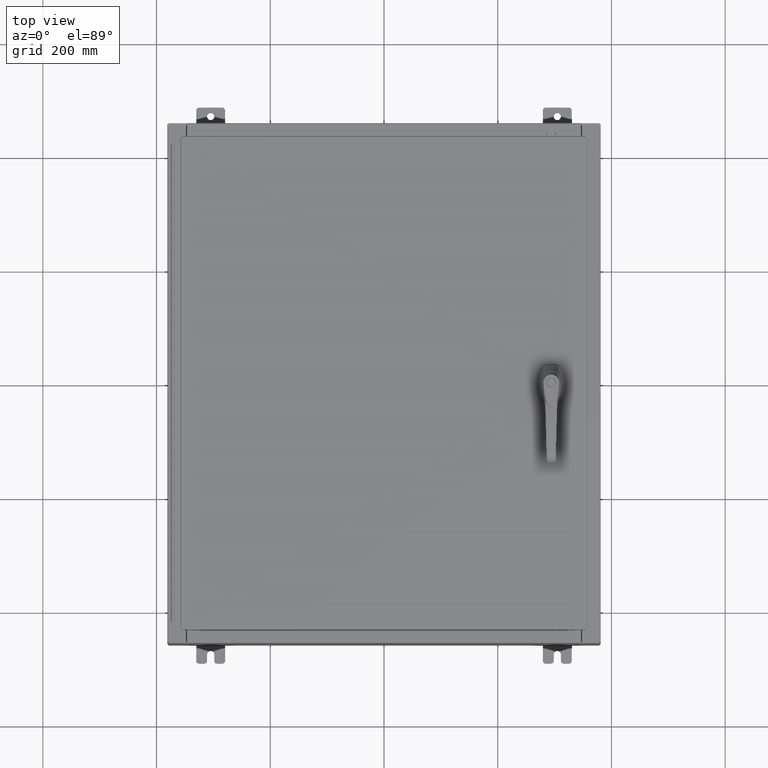
[diagram: clean part render]
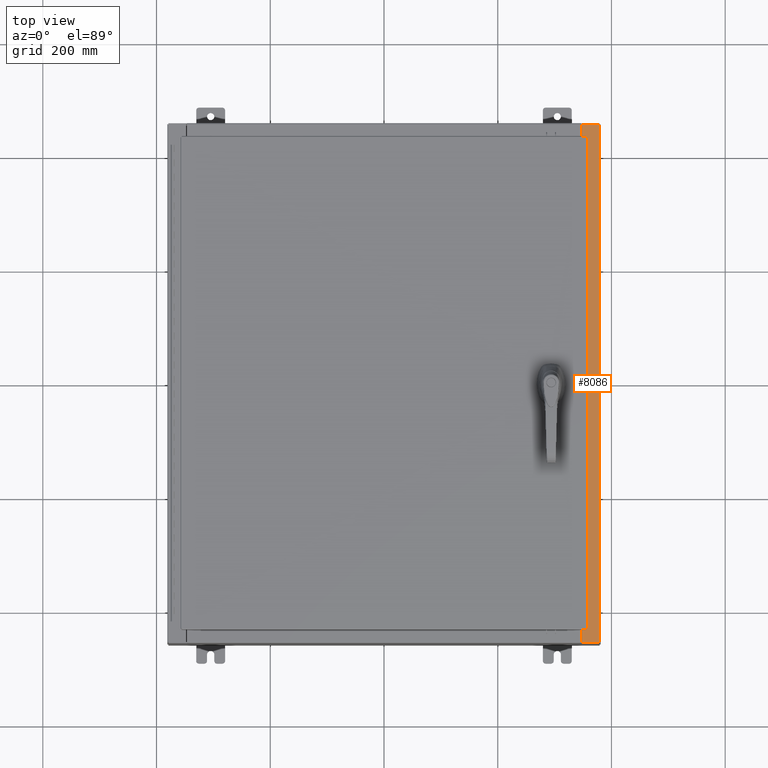
[diagram: same view with one face highlighted and labeled with its STEP entity id]
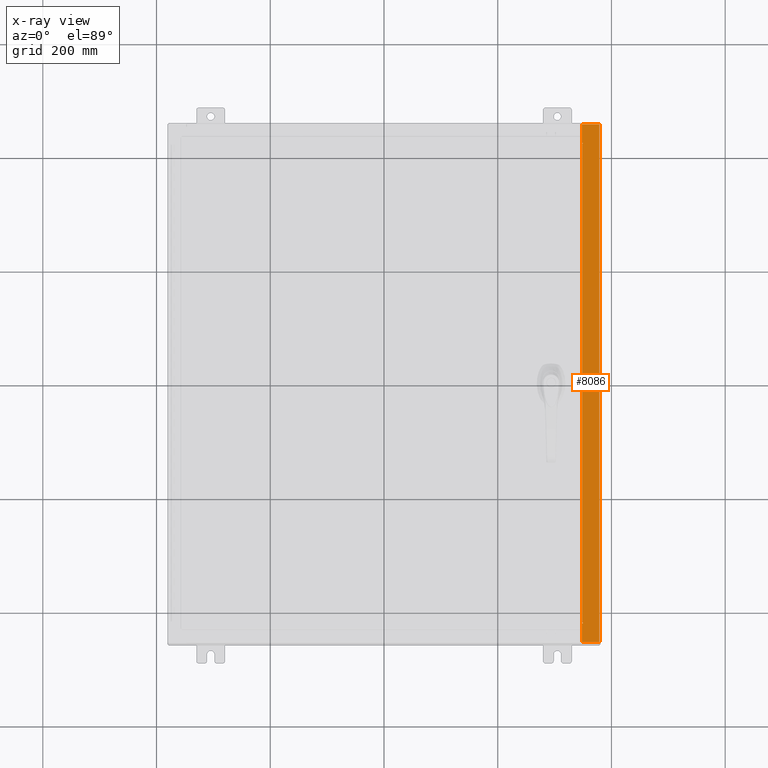
[diagram: x-ray of the same camera — body ghosted, the highlighted face saturated]
A machine part, top view. The second image highlights one B-rep face of the part: STEP entity #8086.
The next image is the same camera in x-ray: the body ghosted, the highlighted face saturated — about 0% of this face is hidden behind the body in this view.
In plain terms, the highlighted planar face has unit normal (-0, 0, -1).
Its self-contained STEP definition (entity closure, byte-faithful):
#383 = LINE ( 'NONE', #83396, #99396 ) ;
#844 = VERTEX_POINT ( 'NONE', #11140 ) ;
#948 = LINE ( 'NONE', #99024, #71420 ) ;
#1593 = LINE ( 'NONE', #89528, #69041 ) ;
#2218 = LINE ( 'NONE', #29601, #47146 ) ;
#8086 = ADVANCED_FACE ( 'NONE', ( #34004 ), #79141, .F. ) ;
#9001 = VERTEX_POINT ( 'NONE', #14381 ) ;
#10304 = DIRECTION ( 'NONE',  ( -1.000000000000000000, 0.0000000000000000000, 0.0000000000000000000 ) ) ;
#11140 = CARTESIAN_POINT ( 'NONE',  ( 13.71270000000003700, -16.59375000000000000, 9.925300000000008900 ) ) ;
#13888 = EDGE_CURVE ( 'NONE', #70707, #87304, #2218, .T. ) ;
#14381 = CARTESIAN_POINT ( 'NONE',  ( 13.75005000000003500, -16.59375000000000000, 9.925300000000008900 ) ) ;
#14393 = EDGE_CURVE ( 'NONE', #99327, #9001, #99621, .T. ) ;
#14497 = CARTESIAN_POINT ( 'NONE',  ( 13.75005000000003500, 16.61242500000000200, 9.925300000000008900 ) ) ;
#16225 = EDGE_CURVE ( 'NONE', #116190, #99327, #383, .T. ) ;
#16793 = EDGE_CURVE ( 'NONE', #96787, #108605, #81461, .T. ) ;
#17408 = CARTESIAN_POINT ( 'NONE',  ( 13.69970000000003400, -16.63110000000000000, 9.925300000000008900 ) ) ;
#18208 = ORIENTED_EDGE ( 'NONE', *, *, #58422, .T. ) ;
#18232 = VECTOR ( 'NONE', #24256, 39.37007874015748100 ) ;
#18761 = ORIENTED_EDGE ( 'NONE', *, *, #113169, .T. ) ;
#24122 = DIRECTION ( 'NONE',  ( 1.000000000000000000, 0.0000000000000000000, 0.0000000000000000000 ) ) ;
#24214 = CARTESIAN_POINT ( 'NONE',  ( 13.75005000000003500, -16.59375000000000000, 9.925300000000008900 ) ) ;
#24256 = DIRECTION ( 'NONE',  ( -4.276128853718621600E-031, -1.000000000000000000, 2.287545828266532300E-045 ) ) ;
#28837 = AXIS2_PLACEMENT_3D ( 'NONE', #50228, #88827, #31383 ) ;
#29454 = EDGE_CURVE ( 'NONE', #70707, #54233, #33055, .T. ) ;
#29502 = ORIENTED_EDGE ( 'NONE', *, *, #49798, .F. ) ;
#29601 = CARTESIAN_POINT ( 'NONE',  ( 5.335691853495967900E-014, 17.92530000000000000, 9.925300000000083500 ) ) ;
#30886 = VECTOR ( 'NONE', #110722, 39.37007874015748100 ) ;
#31383 = DIRECTION ( 'NONE',  ( -1.000000000000000000, 0.0000000000000000000, 5.349571789159788500E-015 ) ) ;
#32894 = DIRECTION ( 'NONE',  ( -4.276128853718621600E-031, -1.000000000000000000, 2.287545828266532300E-045 ) ) ;
#33055 = LINE ( 'NONE', #75183, #55536 ) ;
#33824 = DIRECTION ( 'NONE',  ( -1.000000000000000000, 0.0000000000000000000, 0.0000000000000000000 ) ) ;
#34004 = FACE_OUTER_BOUND ( 'NONE', #60700, .T. ) ;
#37872 = VERTEX_POINT ( 'NONE', #61829 ) ;
#41606 = DIRECTION ( 'NONE',  ( -0.0000000000000000000, 1.000000000000000000, -0.0000000000000000000 ) ) ;
#46210 = DIRECTION ( 'NONE',  ( 5.349571789159788500E-015, 0.0000000000000000000, 1.000000000000000000 ) ) ;
#47146 = VECTOR ( 'NONE', #86605, 39.37007874015748100 ) ;
#48407 = CARTESIAN_POINT ( 'NONE',  ( 13.75005000000003500, 16.63110000000000000, 9.925300000000008900 ) ) ;
#49018 = ORIENTED_EDGE ( 'NONE', *, *, #61745, .T. ) ;
#49798 = EDGE_CURVE ( 'NONE', #9001, #844, #110427, .T. ) ;
#50228 = CARTESIAN_POINT ( 'NONE',  ( 5.335691853495967900E-014, 0.0000000000000000000, 9.925300000000083500 ) ) ;
#54233 = VERTEX_POINT ( 'NONE', #117020 ) ;
#55536 = VECTOR ( 'NONE', #122191, 39.37007874015748100 ) ;
#55937 = VECTOR ( 'NONE', #10304, 39.37007874015748100 ) ;
#58422 = EDGE_CURVE ( 'NONE', #87304, #108605, #120270, .T. ) ;
#58997 = AXIS2_PLACEMENT_3D ( 'NONE', #103657, #46210, #113326 ) ;
#59199 = EDGE_CURVE ( 'NONE', #63280, #96787, #123139, .T. ) ;
#60700 = EDGE_LOOP ( 'NONE', ( #106072, #18761, #49018, #84370, #107936, #18208, #121503, #69352, #117779, #81272, #29502, #110882 ) ) ;
#61745 = EDGE_CURVE ( 'NONE', #97519, #54233, #77756, .T. ) ;
#61829 = CARTESIAN_POINT ( 'NONE',  ( 13.71270000000003700, 16.59375000000000000, 9.925300000000008900 ) ) ;
#63280 = VERTEX_POINT ( 'NONE', #120847 ) ;
#68102 = CARTESIAN_POINT ( 'NONE',  ( 5.335691853495967900E-014, -17.92530000000000000, 9.925300000000083500 ) ) ;
#69041 = VECTOR ( 'NONE', #32894, 39.37007874015748100 ) ;
#69352 = ORIENTED_EDGE ( 'NONE', *, *, #59199, .F. ) ;
#70707 = VERTEX_POINT ( 'NONE', #74814 ) ;
#71420 = VECTOR ( 'NONE', #41606, 39.37007874015748100 ) ;
#74168 = DIRECTION ( 'NONE',  ( 1.000000000000000000, 0.0000000000000000000, 0.0000000000000000000 ) ) ;
#74814 = CARTESIAN_POINT ( 'NONE',  ( 14.91230000000003400, 17.92530000000000000, 9.925300000000001800 ) ) ;
#75183 = CARTESIAN_POINT ( 'NONE',  ( 14.91230000000003400, -17.92530000000000000, 9.925300000000001800 ) ) ;
#76691 = CARTESIAN_POINT ( 'NONE',  ( 13.69970000000003400, -17.92530000000000000, 9.925300000000008900 ) ) ;
#77738 = DIRECTION ( 'NONE',  ( 1.000000000000000000, 1.087045829762337300E-031, -5.349571789159789300E-015 ) ) ;
#77756 = LINE ( 'NONE', #68102, #122798 ) ;
#79141 = PLANE ( 'NONE',  #28837 ) ;
#81272 = ORIENTED_EDGE ( 'NONE', *, *, #105418, .F. ) ;
#81461 = LINE ( 'NONE', #48407, #55937 ) ;
#81504 = DIRECTION ( 'NONE',  ( 5.349571789159788500E-015, 0.0000000000000000000, 1.000000000000000000 ) ) ;
#83396 = CARTESIAN_POINT ( 'NONE',  ( 13.69970000000003400, -16.63110000000000000, 9.925300000000008900 ) ) ;
#83591 = CARTESIAN_POINT ( 'NONE',  ( 13.75005000000003500, 16.63110000000000000, 9.925300000000008900 ) ) ;
#84370 = ORIENTED_EDGE ( 'NONE', *, *, #29454, .F. ) ;
#86605 = DIRECTION ( 'NONE',  ( -1.000000000000000000, 4.861730685829018000E-063, 5.349571789159789300E-015 ) ) ;
#87304 = VERTEX_POINT ( 'NONE', #107646 ) ;
#88827 = DIRECTION ( 'NONE',  ( -5.349571789159788500E-015, 0.0000000000000000000, -1.000000000000000000 ) ) ;
#89528 = CARTESIAN_POINT ( 'NONE',  ( 13.69970000000003400, -5.858168245728892200E-030, 9.925300000000008900 ) ) ;
#90910 = VECTOR ( 'NONE', #33824, 39.37007874015748100 ) ;
#96787 = VERTEX_POINT ( 'NONE', #83591 ) ;
#97519 = VERTEX_POINT ( 'NONE', #76691 ) ;
#99024 = CARTESIAN_POINT ( 'NONE',  ( 13.71270000000003700, -16.59375000000000000, 9.925300000000008900 ) ) ;
#99196 = AXIS2_PLACEMENT_3D ( 'NONE', #14497, #81504, #24122 ) ;
#99327 = VERTEX_POINT ( 'NONE', #104157 ) ;
#99396 = VECTOR ( 'NONE', #74168, 39.37007874015748100 ) ;
#99621 = CIRCLE ( 'NONE', #58997, 0.01867499999999949400 ) ;
#101044 = CARTESIAN_POINT ( 'NONE',  ( 13.71270000000003700, 16.59375000000000000, 9.925300000000008900 ) ) ;
#103657 = CARTESIAN_POINT ( 'NONE',  ( 13.75005000000003500, -16.61242500000000200, 9.925300000000008900 ) ) ;
#104157 = CARTESIAN_POINT ( 'NONE',  ( 13.75005000000003500, -16.63110000000000000, 9.925300000000008900 ) ) ;
#105418 = EDGE_CURVE ( 'NONE', #844, #37872, #948, .T. ) ;
#105594 = EDGE_CURVE ( 'NONE', #37872, #63280, #110401, .T. ) ;
#106072 = ORIENTED_EDGE ( 'NONE', *, *, #16225, .F. ) ;
#107126 = CARTESIAN_POINT ( 'NONE',  ( 13.69970000000003400, 16.63110000000000000, 9.925300000000008900 ) ) ;
#107646 = CARTESIAN_POINT ( 'NONE',  ( 13.69970000000003400, 17.92530000000000000, 9.925300000000008900 ) ) ;
#107936 = ORIENTED_EDGE ( 'NONE', *, *, #13888, .T. ) ;
#108605 = VERTEX_POINT ( 'NONE', #107126 ) ;
#110401 = LINE ( 'NONE', #101044, #30886 ) ;
#110427 = LINE ( 'NONE', #24214, #90910 ) ;
#110722 = DIRECTION ( 'NONE',  ( 1.000000000000000000, 0.0000000000000000000, 0.0000000000000000000 ) ) ;
#110882 = ORIENTED_EDGE ( 'NONE', *, *, #14393, .F. ) ;
#113169 = EDGE_CURVE ( 'NONE', #116190, #97519, #1593, .T. ) ;
#113326 = DIRECTION ( 'NONE',  ( 1.000000000000000000, 0.0000000000000000000, 0.0000000000000000000 ) ) ;
#116190 = VERTEX_POINT ( 'NONE', #17408 ) ;
#117020 = CARTESIAN_POINT ( 'NONE',  ( 14.91230000000003400, -17.92530000000000000, 9.925300000000001800 ) ) ;
#117779 = ORIENTED_EDGE ( 'NONE', *, *, #105594, .F. ) ;
#119900 = CARTESIAN_POINT ( 'NONE',  ( 13.69970000000003400, -5.858168245728892200E-030, 9.925300000000008900 ) ) ;
#120270 = LINE ( 'NONE', #119900, #18232 ) ;
#120847 = CARTESIAN_POINT ( 'NONE',  ( 13.75005000000003500, 16.59375000000000000, 9.925300000000008900 ) ) ;
#121503 = ORIENTED_EDGE ( 'NONE', *, *, #16793, .F. ) ;
#122191 = DIRECTION ( 'NONE',  ( -0.0000000000000000000, -1.000000000000000000, -0.0000000000000000000 ) ) ;
#122798 = VECTOR ( 'NONE', #77738, 39.37007874015748100 ) ;
#123139 = CIRCLE ( 'NONE', #99196, 0.01867499999999949400 ) ;